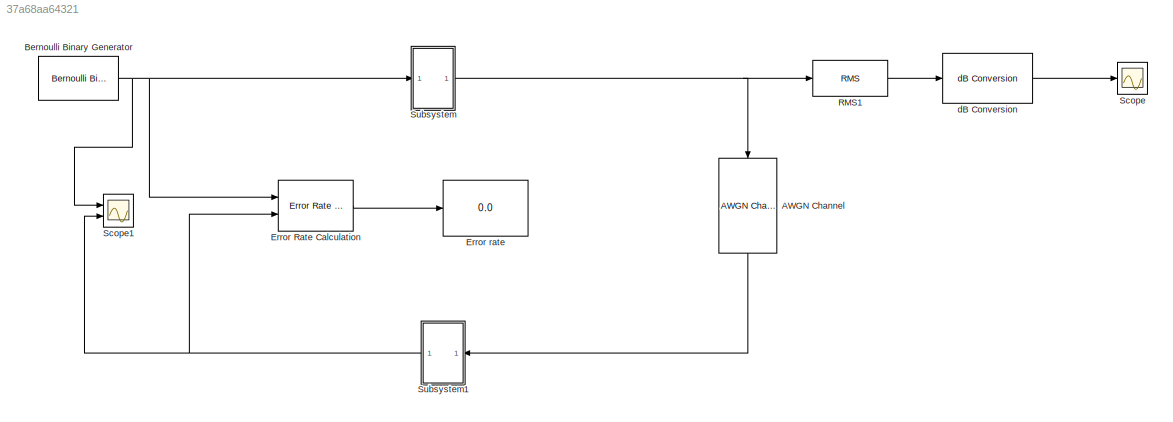
MODEL slx_37a68aa64321
KIND model
CONFIG AbsTol = auto
CONFIG EnableMultiTasking = off
CONFIG FixedStep = auto
CONFIG MaxStep = auto
CONFIG MinStep = auto
CONFIG RelTol = 1e-3
CONFIG SampleTimeConstraint = Unconstrained
CONFIG SolverName = VariableStepAuto
CONFIG StartTime = 0.0
CONFIG StopTime = 10.0
BLOCK [Reference] AWGN Channel  REF=commchan3/AWGN
Channel
  NameLocation = left
  Ports = [1, 1]
  SourceBlock = commchan3/AWGN\nChannel
  SourceProductBaseCode = CM
  SourceType = AWGN Channel
  UserDataPersistent = on
BLOCK [Reference] Bernoulli Binary Generator  REF=commrandsrc3/Bernoulli Binary
Generator
  Ports = [0, 1]
  SourceBlock = commrandsrc3/Bernoulli Binary\nGenerator
  SourceProductBaseCode = CM
  SourceType = Bernoulli Binary Generator
BLOCK [Reference] Error Rate Calculation  REF=commsink2/Error Rate
Calculation
  Ports = [2, 1]
  SourceBlock = commsink2/Error Rate\nCalculation
  SourceProductBaseCode = CM
  SourceType = Error Rate Calculation
BLOCK [Display] Error rate 
  Decimation = 1
  Ports = [1]
BLOCK [Reference] RMS1  REF=dspstat3/RMS
  Ports = [1, 1]
  SourceBlock = dspstat3/RMS
  SourceProductBaseCode = DS
  SourceType = RMS
  UserDataPersistent = on
BLOCK [Scope] Scope
  Floating = off
  NumInputPorts = 1
  Ports = [1]
  ScopeSpecificationString = Simulink.scopes.TimeScopeBlockCfg('CurrentConfiguration', extmgr.ConfigurationSet(extmgr.Configuration('Core','General UI',true),extmgr.Configuration('Core','Source UI',true),extmgr.Configuration('Sources','WiredSimulink',true),extmgr.Configuration('Visuals','Time Domain',true,'SerializedDisplays',{struct('MinYLimReal','-10.57028','MaxYLimReal','-8.81688','YLabelReal','','MinYLimMag','0.00000','Ma...<+1370ch>
BLOCK [Scope] Scope1
  Floating = off
  NumInputPorts = 2
  Ports = [2]
  ScopeSpecificationString = Simulink.scopes.TimeScopeBlockCfg('CurrentConfiguration', extmgr.ConfigurationSet(extmgr.Configuration('Core','General UI',true),extmgr.Configuration('Core','Source UI',true),extmgr.Configuration('Sources','WiredSimulink',true,'DataLoggingVariableName','ScopeData1'),extmgr.Configuration('Visuals','Time Domain',true,'SerializedDisplays',{struct('MinYLimReal','-0.125','MaxYLimReal','1.125','YLabelRe...<+24580ch>
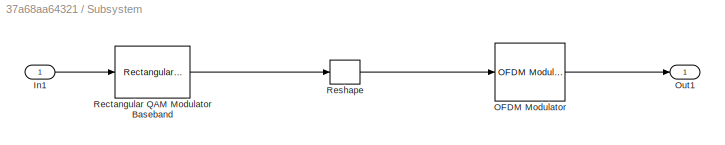
BLOCK [SubSystem] Subsystem
  Ports = [1, 1]
  RequestExecContextInheritance = off
  TreatAsAtomicUnit = on
BLOCK [Inport] Subsystem/In1
BLOCK [Reference] Subsystem/OFDM Modulator  REF=commofdm/OFDM Modulator
  Ports = [1, 1]
  SourceBlock = commofdm/OFDM Modulator
  SourceProductBaseCode = CM
  SourceType = OFDM Modulator
  StatePerturbationForJacobian = 1.0e-05
BLOCK [Outport] Subsystem/Out1
BLOCK [Reference] Subsystem/Rectangular QAM Modulator Baseband  REF=commdigbbndam3/Rectangular QAM
Modulator
Baseband
  Ports = [1, 1]
  SourceBlock = commdigbbndam3/Rectangular QAM\nModulator\nBaseband
  SourceProductBaseCode = CM
  SourceType = Rectangular QAM Modulator Baseband
BLOCK [Reshape] Subsystem/Reshape
  OutputDimensionality = Customize
  OutputDimensions = [48,1,1]
  Ports = [1, 1]
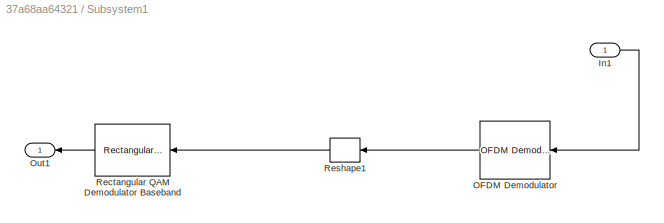
BLOCK [SubSystem] Subsystem1
  Ports = [1, 1]
  RequestExecContextInheritance = off
BLOCK [Inport] Subsystem1/In1
BLOCK [Reference] Subsystem1/OFDM Demodulator  REF=commofdm/OFDM Demodulator
  Ports = [1, 1]
  SourceBlock = commofdm/OFDM Demodulator
  SourceProductBaseCode = CM
  SourceType = OFDM Demodulator
  StatePerturbationForJacobian = 1.0e-05
BLOCK [Outport] Subsystem1/Out1
BLOCK [Reference] Subsystem1/Rectangular QAM Demodulator Baseband  REF=commdigbbndam3/Rectangular QAM
Demodulator
Baseband
  Ports = [1, 1]
  SourceBlock = commdigbbndam3/Rectangular QAM\nDemodulator\nBaseband
  SourceProductBaseCode = CM
  SourceType = Rectangular QAM Demodulator Baseband
BLOCK [Reshape] Subsystem1/Reshape1
  OutputDimensionality = Customize
  OutputDimensions = [48,1]
  Ports = [1, 1]
BLOCK [Reference] dB Conversion  REF=dspmathops/dB Conversion
  Ports = [1, 1]
  SourceBlock = dspmathops/dB Conversion
  SourceProductBaseCode = DS
  SourceType = dB Conversion
LINE AWGN Channel:1 -> Subsystem1:1
NET Bernoulli Binary Generator:1 -> Error Rate Calculation:1, Scope1:1, Subsystem:1
LINE Error Rate Calculation:1 -> Error rate :1
LINE RMS1:1 -> dB Conversion:1
LINE Subsystem/In1:1 -> Subsystem/Rectangular QAM Modulator Baseband:1
LINE Subsystem/OFDM Modulator:1 -> Subsystem/Out1:1
LINE Subsystem/Rectangular QAM Modulator Baseband:1 -> Subsystem/Reshape:1
LINE Subsystem/Reshape:1 -> Subsystem/OFDM Modulator:1
LINE Subsystem1/In1:1 -> Subsystem1/OFDM Demodulator:1
LINE Subsystem1/OFDM Demodulator:1 -> Subsystem1/Reshape1:1
LINE Subsystem1/Rectangular QAM Demodulator Baseband:1 -> Subsystem1/Out1:1
LINE Subsystem1/Reshape1:1 -> Subsystem1/Rectangular QAM Demodulator Baseband:1
NET Subsystem1:1 -> Error Rate Calculation:2, Scope1:2
NET Subsystem:1 -> AWGN Channel:1, RMS1:1
LINE dB Conversion:1 -> Scope:1
note: NET lines group one-source signal fan-out (src -> all destinations, sorted); 1:1 wires keep LINE
